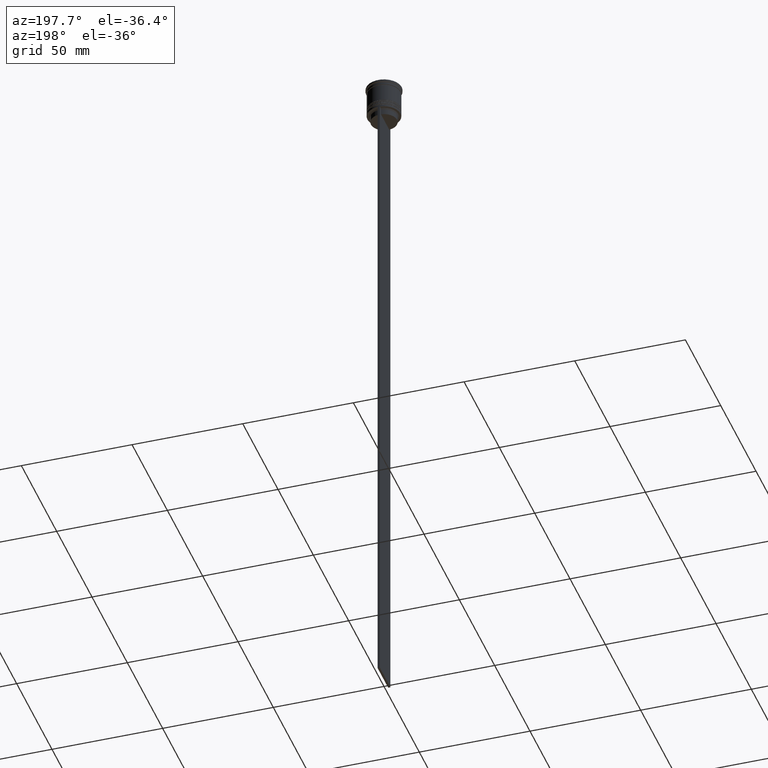
[diagram: clean part render]
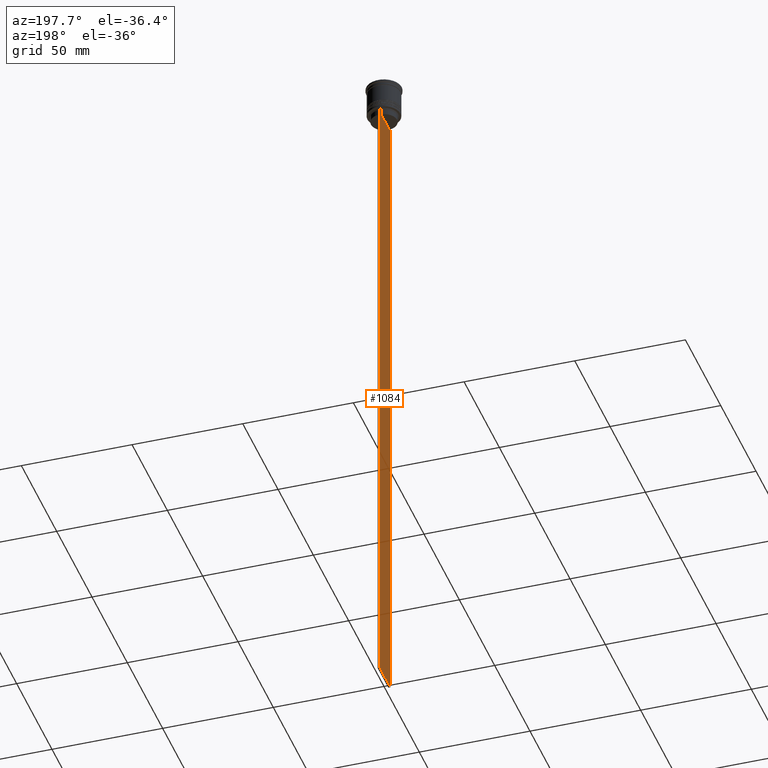
[diagram: same view with one face highlighted and labeled with its STEP entity id]
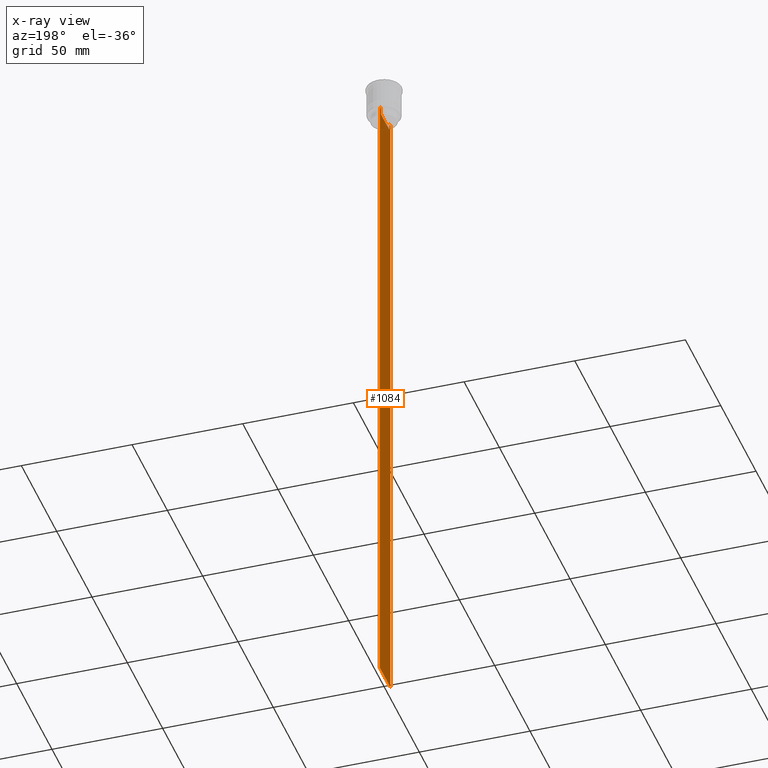
[diagram: x-ray of the same camera — body ghosted, the highlighted face saturated]
A machine part, auxiliary view. The second image highlights one B-rep face of the part: STEP entity #1084.
The next image is the same camera in x-ray: the body ghosted, the highlighted face saturated — about 0% of this face is hidden behind the body in this view.
In plain terms, the highlighted planar face has unit normal (-1, 0, 0).
Its self-contained STEP definition (entity closure, byte-faithful):
#37 = VECTOR ( 'NONE', #1003, 1000.000000000000000 ) ;
#47 = EDGE_LOOP ( 'NONE', ( #2479, #1191, #2115, #667, #853, #873, #1879, #1638, #526, #596, #2214, #109 ) ) ;
#68 = CARTESIAN_POINT ( 'NONE',  ( -0.5000000000000000000, -7.499999999999999112, 1.033296378372908997 ) ) ;
#69 = CARTESIAN_POINT ( 'NONE',  ( -0.5000000000000000000, -7.499999999999999112, -314.0000000000000000 ) ) ;
#87 = VERTEX_POINT ( 'NONE', #404 ) ;
#104 = DIRECTION ( 'NONE',  ( 0.000000000000000000, -1.000000000000000000, 0.000000000000000000 ) ) ;
#109 = ORIENTED_EDGE ( 'NONE', *, *, #1269, .F. ) ;
#111 = DIRECTION ( 'NONE',  ( 0.000000000000000000, 1.000000000000000000, 0.000000000000000000 ) ) ;
#135 = LINE ( 'NONE', #1611, #1996 ) ;
#173 = EDGE_CURVE ( 'NONE', #2437, #429, #391, .T. ) ;
#201 = VERTEX_POINT ( 'NONE', #1148 ) ;
#310 = CARTESIAN_POINT ( 'NONE',  ( -0.5000000000000000000, -5.878775382679625849, -14.50000000000000000 ) ) ;
#316 = EDGE_CURVE ( 'NONE', #470, #347, #2341, .T. ) ;
#344 = CARTESIAN_POINT ( 'NONE',  ( -0.5000000000000000000, -7.499999999999999112, -14.00000000000000178 ) ) ;
#347 = VERTEX_POINT ( 'NONE', #1281 ) ;
#391 = LINE ( 'NONE', #344, #1195 ) ;
#404 = CARTESIAN_POINT ( 'NONE',  ( -0.5000000000000000000, -7.499999999999999112, -14.00000000000000178 ) ) ;
#429 = VERTEX_POINT ( 'NONE', #1464 ) ;
#440 = DIRECTION ( 'NONE',  ( 0.000000000000000000, -1.000000000000000000, 0.000000000000000000 ) ) ;
#451 = VERTEX_POINT ( 'NONE', #2420 ) ;
#452 = CARTESIAN_POINT ( 'NONE',  ( -0.5000000000000000000, 7.500000000000002665, 1.033296378372908997 ) ) ;
#458 = VECTOR ( 'NONE', #529, 1000.000000000000000 ) ;
#470 = VERTEX_POINT ( 'NONE', #1654 ) ;
#526 = ORIENTED_EDGE ( 'NONE', *, *, #902, .F. ) ;
#529 = DIRECTION ( 'NONE',  ( 0.000000000000000000, -1.000000000000000000, 0.000000000000000000 ) ) ;
#532 = VECTOR ( 'NONE', #1373, 1000.000000000000000 ) ;
#544 = EDGE_CURVE ( 'NONE', #87, #2397, #956, .T. ) ;
#553 = CARTESIAN_POINT ( 'NONE',  ( -0.5000000000000000000, -7.499999999999999112, 1.033296378372908997 ) ) ;
#596 = ORIENTED_EDGE ( 'NONE', *, *, #1175, .F. ) ;
#610 = FACE_OUTER_BOUND ( 'NONE', #47, .T. ) ;
#623 = PLANE ( 'NONE',  #1433 ) ;
#628 = CARTESIAN_POINT ( 'NONE',  ( -0.5000000000000000000, 5.899999999999998579, -17.00000000000000000 ) ) ;
#634 = CARTESIAN_POINT ( 'NONE',  ( -0.5000000000000000000, -7.499999999999999112, -14.00000000000000178 ) ) ;
#662 = DIRECTION ( 'NONE',  ( 0.000000000000000000, 0.000000000000000000, -1.000000000000000000 ) ) ;
#667 = ORIENTED_EDGE ( 'NONE', *, *, #2342, .T. ) ;
#752 = VERTEX_POINT ( 'NONE', #2375 ) ;
#760 = VECTOR ( 'NONE', #1930, 1000.000000000000000 ) ;
#807 = CARTESIAN_POINT ( 'NONE',  ( -0.5000000000000000000, 5.878775382679625849, -14.50000000000000000 ) ) ;
#853 = ORIENTED_EDGE ( 'NONE', *, *, #2046, .F. ) ;
#873 = ORIENTED_EDGE ( 'NONE', *, *, #544, .F. ) ;
#902 = EDGE_CURVE ( 'NONE', #1310, #2437, #1941, .T. ) ;
#908 = CARTESIAN_POINT ( 'NONE',  ( -0.5000000000000000000, -6.213239311785844876, -14.16668851110870087 ) ) ;
#956 = LINE ( 'NONE', #553, #760 ) ;
#975 = CARTESIAN_POINT ( 'NONE',  ( -0.5000000000000000000, 6.380438856379706536, -14.00000000000000178 ) ) ;
#1003 = DIRECTION ( 'NONE',  ( -0.000000000000000000, -0.000000000000000000, 1.000000000000000000 ) ) ;
#1023 = CARTESIAN_POINT ( 'NONE',  ( -0.5000000000000000000, -7.499999999999999112, -314.0000000000000000 ) ) ;
#1049 = VECTOR ( 'NONE', #2347, 1000.000000000000000 ) ;
#1069 = CARTESIAN_POINT ( 'NONE',  ( -0.5000000000000000000, -6.046019991840948293, -14.33335703538585726 ) ) ;
#1084 = ADVANCED_FACE ( 'NONE', ( #610 ), #623, .T. ) ;
#1107 = VERTEX_POINT ( 'NONE', #1205 ) ;
#1129 = EDGE_CURVE ( 'NONE', #451, #752, #1975, .T. ) ;
#1148 = CARTESIAN_POINT ( 'NONE',  ( -0.5000000000000000000, 5.878775382679625849, -14.50000000000000000 ) ) ;
#1175 = EDGE_CURVE ( 'NONE', #347, #1310, #1950, .T. ) ;
#1191 = ORIENTED_EDGE ( 'NONE', *, *, #1247, .F. ) ;
#1192 = DIRECTION ( 'NONE',  ( -1.000000000000000000, 0.000000000000000000, 0.000000000000000000 ) ) ;
#1193 = CARTESIAN_POINT ( 'NONE',  ( -0.5000000000000000000, -6.380438856379706536, -14.00000000000000178 ) ) ;
#1195 = VECTOR ( 'NONE', #2331, 1000.000000000000000 ) ;
#1205 = CARTESIAN_POINT ( 'NONE',  ( -0.5000000000000000000, 7.500000000000002665, -314.0000000000000000 ) ) ;
#1208 = VECTOR ( 'NONE', #111, 1000.000000000000000 ) ;
#1227 = LINE ( 'NONE', #2210, #1631 ) ;
#1247 = EDGE_CURVE ( 'NONE', #752, #1891, #1227, .T. ) ;
#1269 = EDGE_CURVE ( 'NONE', #201, #470, #135, .T. ) ;
#1281 = CARTESIAN_POINT ( 'NONE',  ( -0.5000000000000000000, -5.878775382679625849, -17.00000000000000000 ) ) ;
#1310 = VERTEX_POINT ( 'NONE', #1622 ) ;
#1373 = DIRECTION ( 'NONE',  ( 0.000000000000000000, -1.000000000000000000, 0.000000000000000000 ) ) ;
#1374 = LINE ( 'NONE', #452, #1049 ) ;
#1433 = AXIS2_PLACEMENT_3D ( 'NONE', #68, #1192, #2149 ) ;
#1464 = CARTESIAN_POINT ( 'NONE',  ( -0.5000000000000000000, -7.383088784512886527, -14.00000000000000178 ) ) ;
#1611 = CARTESIAN_POINT ( 'NONE',  ( -0.5000000000000000000, 5.878775382679625849, 0.000000000000000000 ) ) ;
#1622 = CARTESIAN_POINT ( 'NONE',  ( -0.5000000000000000000, -5.878775382679625849, -14.50000000000000000 ) ) ;
#1631 = VECTOR ( 'NONE', #104, 1000.000000000000000 ) ;
#1638 = ORIENTED_EDGE ( 'NONE', *, *, #173, .F. ) ;
#1654 = CARTESIAN_POINT ( 'NONE',  ( -0.5000000000000000000, 5.878775382679625849, -17.00000000000000000 ) ) ;
#1791 = B_SPLINE_CURVE_WITH_KNOTS ( 'NONE', 3,
 ( #2184, #1986, #1976, #807 ),
 .UNSPECIFIED., .F., .F.,
 ( 4, 4 ),
 ( 0.01087727669788152163, 0.01158556069794289788 ),
 .UNSPECIFIED. ) ;
#1824 = CARTESIAN_POINT ( 'NONE',  ( -0.5000000000000000000, -6.380438856379706536, -14.00000000000000178 ) ) ;
#1868 = CARTESIAN_POINT ( 'NONE',  ( -0.5000000000000000000, -7.499999999999999112, -14.00000000000000178 ) ) ;
#1879 = ORIENTED_EDGE ( 'NONE', *, *, #2077, .F. ) ;
#1891 = VERTEX_POINT ( 'NONE', #975 ) ;
#1930 = DIRECTION ( 'NONE',  ( 0.000000000000000000, 0.000000000000000000, -1.000000000000000000 ) ) ;
#1941 = B_SPLINE_CURVE_WITH_KNOTS ( 'NONE', 3,
 ( #310, #1069, #908, #1824 ),
 .UNSPECIFIED., .F., .F.,
 ( 4, 4 ),
 ( 0.02765270321082434479, 0.02836198271238431559 ),
 .UNSPECIFIED. ) ;
#1950 = LINE ( 'NONE', #2370, #37 ) ;
#1975 = LINE ( 'NONE', #634, #532 ) ;
#1976 = CARTESIAN_POINT ( 'NONE',  ( -0.5000000000000000000, 6.046020074006152711, -14.33335695351623151 ) ) ;
#1982 = LINE ( 'NONE', #1868, #458 ) ;
#1986 = CARTESIAN_POINT ( 'NONE',  ( -0.5000000000000000000, 6.213239387491007015, -14.16668843563492430 ) ) ;
#1996 = VECTOR ( 'NONE', #662, 1000.000000000000000 ) ;
#2046 = EDGE_CURVE ( 'NONE', #2397, #1107, #2227, .T. ) ;
#2077 = EDGE_CURVE ( 'NONE', #429, #87, #1982, .T. ) ;
#2115 = ORIENTED_EDGE ( 'NONE', *, *, #1129, .F. ) ;
#2149 = DIRECTION ( 'NONE',  ( 0.000000000000000000, 0.000000000000000000, 1.000000000000000000 ) ) ;
#2184 = CARTESIAN_POINT ( 'NONE',  ( -0.5000000000000000000, 6.380438856379706536, -14.00000000000000178 ) ) ;
#2210 = CARTESIAN_POINT ( 'NONE',  ( -0.5000000000000000000, -7.499999999999999112, -14.00000000000000178 ) ) ;
#2214 = ORIENTED_EDGE ( 'NONE', *, *, #316, .F. ) ;
#2227 = LINE ( 'NONE', #1023, #1208 ) ;
#2320 = VECTOR ( 'NONE', #440, 1000.000000000000000 ) ;
#2331 = DIRECTION ( 'NONE',  ( 0.000000000000000000, -1.000000000000000000, 0.000000000000000000 ) ) ;
#2341 = LINE ( 'NONE', #628, #2320 ) ;
#2342 = EDGE_CURVE ( 'NONE', #451, #1107, #1374, .T. ) ;
#2347 = DIRECTION ( 'NONE',  ( 0.000000000000000000, 0.000000000000000000, -1.000000000000000000 ) ) ;
#2370 = CARTESIAN_POINT ( 'NONE',  ( -0.5000000000000000000, -5.878775382679625849, 0.000000000000000000 ) ) ;
#2372 = EDGE_CURVE ( 'NONE', #1891, #201, #1791, .T. ) ;
#2375 = CARTESIAN_POINT ( 'NONE',  ( -0.5000000000000000000, 7.383088784512886527, -14.00000000000000178 ) ) ;
#2397 = VERTEX_POINT ( 'NONE', #69 ) ;
#2420 = CARTESIAN_POINT ( 'NONE',  ( -0.5000000000000000000, 7.500000000000002665, -14.00000000000000178 ) ) ;
#2437 = VERTEX_POINT ( 'NONE', #1193 ) ;
#2479 = ORIENTED_EDGE ( 'NONE', *, *, #2372, .F. ) ;